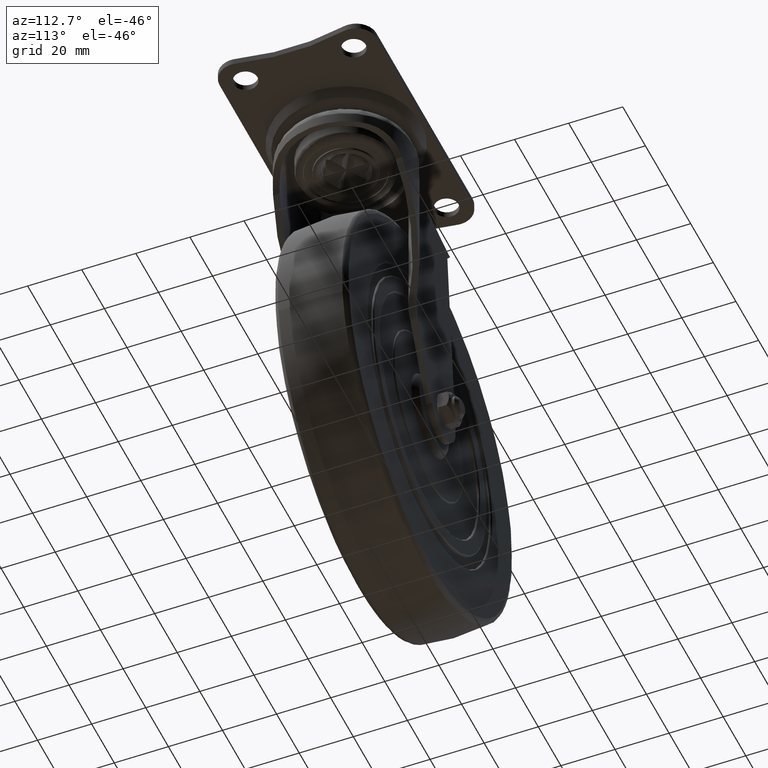
[diagram: clean part render]
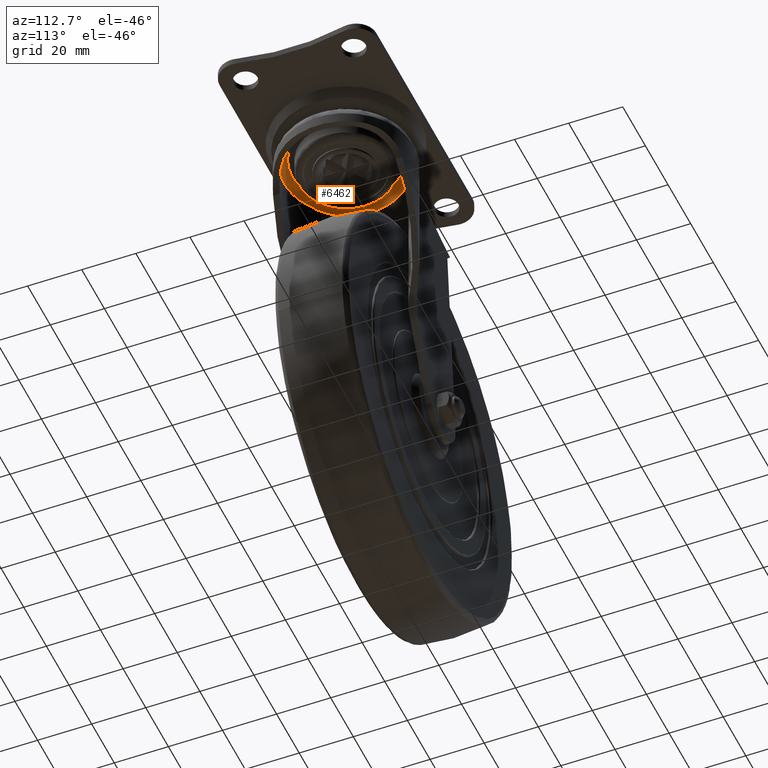
[diagram: same view with one face highlighted and labeled with its STEP entity id]
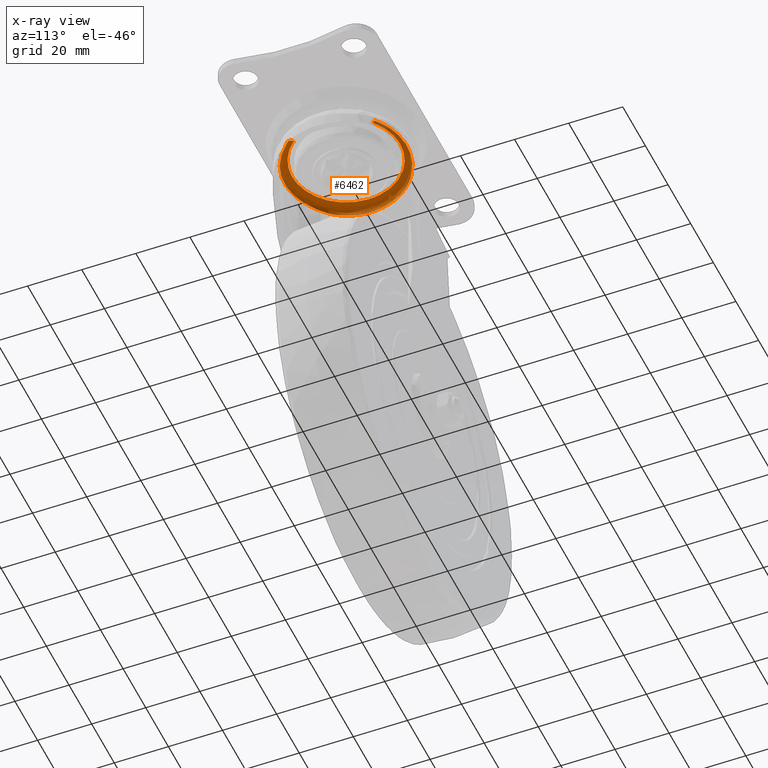
[diagram: x-ray of the same camera — body ghosted, the highlighted face saturated]
A machine part, auxiliary view. The second image highlights one B-rep face of the part: STEP entity #6462.
The next image is the same camera in x-ray: the body ghosted, the highlighted face saturated — about 10% of this face is hidden behind the body in this view.
In plain terms, the highlighted face is a freeform B-spline surface patch.
Its self-contained STEP definition (entity closure, byte-faithful):
#6246=CARTESIAN_POINT('',(56.149959861652299,16.673257907185693,86.150695876734787));
#6247=CARTESIAN_POINT('',(39.476701954466598,30.823217768837996,86.150695876734773));
#6248=CARTESIAN_POINT('',(25.326742092814307,14.149959861652297,86.150695876734787));
#6249=CARTESIAN_POINT('',(11.176782231162001,-2.523298045533391,86.150695876734773));
#6250=CARTESIAN_POINT('',(27.850040138347701,-16.673257907185693,86.150695876734787));
#6251=CARTESIAN_POINT('',(44.523298045533402,-30.823217768837996,86.150695876734773));
#6252=CARTESIAN_POINT('',(58.673257907185686,-14.149959861652297,86.150695876734787));
#6253=CARTESIAN_POINT('',(57.056579620976287,17.741551048562449,87.493559951585368));
#6254=CARTESIAN_POINT('',(39.315028572413844,32.798130669538736,87.493559951585368));
#6255=CARTESIAN_POINT('',(24.258448951437547,15.056579620976301,87.493559951585368));
#6256=CARTESIAN_POINT('',(9.201869330461250,-2.684971427586156,87.493559951585368));
#6257=CARTESIAN_POINT('',(26.943420379023710,-17.741551048562464,87.493559951585368));
#6258=CARTESIAN_POINT('',(44.684971427586163,-32.798130669538736,87.493559951585368));
#6259=CARTESIAN_POINT('',(59.741551048562478,-15.056579620976301,87.493559951585368));
#6260=CARTESIAN_POINT('',(56.521898325304988,17.111522466994810,89.249599087225789));
#6261=CARTESIAN_POINT('',(39.410375858310175,31.633420792299784,89.249599087225803));
#6262=CARTESIAN_POINT('',(24.888477533005190,14.521898325304990,89.249599087225789));
#6263=CARTESIAN_POINT('',(10.366579207700211,-2.589624141689817,89.249599087225803));
#6264=CARTESIAN_POINT('',(27.478101674695019,-17.111522466994810,89.249599087225789));
#6265=CARTESIAN_POINT('',(44.589624141689825,-31.633420792299784,89.249599087225803));
#6266=CARTESIAN_POINT('',(59.111522466994813,-14.521898325304990,89.249599087225789));
#6267=CARTESIAN_POINT('',(55.990693642971848,16.485590467424405,90.994220076896354));
#6268=CARTESIAN_POINT('',(39.505103175547447,30.476284110396250,90.994220076896354));
#6269=CARTESIAN_POINT('',(25.514409532575606,13.990693642971850,90.994220076896354));
#6270=CARTESIAN_POINT('',(11.523715889603757,-2.494896824452547,90.994220076896354));
#6271=CARTESIAN_POINT('',(28.009306357028152,-16.485590467424405,90.994220076896354));
#6272=CARTESIAN_POINT('',(44.494896824452546,-30.476284110396250,90.994220076896354));
#6273=CARTESIAN_POINT('',(58.485590467424409,-13.990693642971850,90.994220076896354));
#6274=CARTESIAN_POINT('',(54.750533755654587,15.024278502616275,90.783881122786894));
#6275=CARTESIAN_POINT('',(39.726255253038310,27.774812258270867,90.783881122786909));
#6276=CARTESIAN_POINT('',(26.975721497383720,12.750533755654583,90.783881122786894));
#6277=CARTESIAN_POINT('',(14.225187741729144,-2.273744746961695,90.783881122786909));
#6278=CARTESIAN_POINT('',(29.249466244345413,-15.024278502616275,90.783881122786894));
#6279=CARTESIAN_POINT('',(44.273744746961704,-27.774812258270867,90.783881122786909));
#6280=CARTESIAN_POINT('',(57.024278502616276,-12.750533755654583,90.783881122786894));
#6288=(BOUNDED_SURFACE()B_SPLINE_SURFACE(2,2,((#6246,#6253,#6260,#6267,#6274),(#6247,#6254,#6261,#6268,#6275),(#6248,#6255,#6262,#6269,#6276),(#6249,#6256,#6263,#6270,#6277),(#6250,#6257,#6264,#6271,#6278),(#6251,#6258,#6265,#6272,#6279),(#6252,#6259,#6266,#6273,#6280)),.UNSPECIFIED.,.F.,.F.,.U.)B_SPLINE_SURFACE_WITH_KNOTS((3,2,2,3),(3,2,3),(0.0,37.539841688649872,75.079683377299730,112.619525065949600),(0.0,3.478509579030628,6.938930579567319),.UNSPECIFIED.)GEOMETRIC_REPRESENTATION_ITEM()RATIONAL_B_SPLINE_SURFACE(((0.967502048088881,0.798695067335748,1.0,0.799741872006825,0.965756431777888),(0.684127259015521,0.564762698213354,0.707106781186548,0.565502900894850,0.682892921884668),(0.967502048088881,0.798695067335748,1.0,0.799741872006825,0.965756431777888),(0.684127259015521,0.564762698213354,0.707106781186548,0.565502900894850,0.682892921884668),(0.967502048088881,0.798695067335748,1.0,0.799741872006825,0.965756431777888),(0.684127259015521,0.564762698213354,0.707106781186548,0.565502900894850,0.682892921884668),(0.967502048088881,0.798695067335748,1.0,0.799741872006825,0.965756431777888)))REPRESENTATION_ITEM('')SURFACE());
#6289=CARTESIAN_POINT('',(29.765933542220349,19.121130141982501,88.099995000000007));
#6290=VERTEX_POINT('',#6289);
#6291=CARTESIAN_POINT('',(56.688170327574902,17.307445000003568,88.099994999968757));
#6292=VERTEX_POINT('',#6291);
#6293=CARTESIAN_POINT('',(29.765933542220370,19.121130141982491,88.099995000000092));
#6294=CARTESIAN_POINT('',(43.897246427173485,28.162615644484777,88.099995000000092));
#6295=CARTESIAN_POINT('',(56.688170327574895,17.307445000003565,88.099994999968757));
#6303=(BOUNDED_CURVE()B_SPLINE_CURVE(2,(#6293,#6294,#6295),.UNSPECIFIED.,.F.,.U.)B_SPLINE_CURVE_WITH_KNOTS((3,3),(0.0,0.295189320449306),.UNSPECIFIED.)CURVE()GEOMETRIC_REPRESENTATION_ITEM()RATIONAL_B_SPLINE_CURVE((1.0,0.784088768984405,0.950585675334010))REPRESENTATION_ITEM(''));
#6304=EDGE_CURVE('',#6290,#6292,#6303,.T.);
#6305=ORIENTED_EDGE('',*,*,#6304,.T.);
#6306=CARTESIAN_POINT('',(54.941119330499582,15.248850316063500,90.799995000000095));
#6307=VERTEX_POINT('',#6306);
#6308=CARTESIAN_POINT('',(56.688170327574895,17.307445000003568,88.099994999968757));
#6309=CARTESIAN_POINT('',(56.688170327635447,17.307444999970542,88.703516503792642));
#6310=CARTESIAN_POINT('',(56.521898325304988,17.111522466994810,89.249599087225789));
#6311=CARTESIAN_POINT('',(56.049831623878539,16.555274255746607,90.799994825862470));
#6312=CARTESIAN_POINT('',(54.941119330499582,15.248850316063491,90.799995000000095));
#6320=(BOUNDED_CURVE()B_SPLINE_CURVE(2,(#6308,#6309,#6310,#6311,#6312),.UNSPECIFIED.,.F.,.U.)B_SPLINE_CURVE_WITH_KNOTS((3,2,3),(-2.663820280309709,-2.0,-0.337553301753706),.UNSPECIFIED.)CURVE()GEOMETRIC_REPRESENTATION_ITEM()RATIONAL_B_SPLINE_CURVE((0.902883916252168,0.927318097770304,1.0,0.817978160703913,0.938557927154323))REPRESENTATION_ITEM(''));
#6321=EDGE_CURVE('',#6292,#6307,#6320,.T.);
#6322=ORIENTED_EDGE('',*,*,#6321,.T.);
#6323=CARTESIAN_POINT('',(22.0,0.0,90.799995000000095));
#6324=VERTEX_POINT('',#6323);
#6325=CARTESIAN_POINT('',(54.941119330499575,15.248850316063491,90.799995000000095));
#6326=CARTESIAN_POINT('',(49.342718515722751,19.999999999999993,90.799995000000095));
#6327=CARTESIAN_POINT('',(42.0,20.0,90.799995000000095));
#6328=CARTESIAN_POINT('',(22.000000000000007,19.999999999999996,90.799995000000095));
#6329=CARTESIAN_POINT('',(22.0,0.0,90.799995000000095));
#6337=(BOUNDED_CURVE()B_SPLINE_CURVE(2,(#6325,#6326,#6327,#6328,#6329),.UNSPECIFIED.,.F.,.U.)B_SPLINE_CURVE_WITH_KNOTS((3,2,3),(0.137331629628913,0.250000000000000,0.500000000000000),.UNSPECIFIED.)CURVE()GEOMETRIC_REPRESENTATION_ITEM()RATIONAL_B_SPLINE_CURVE((0.854978670754825,0.868000793374184,1.0,0.707106781186548,1.0))REPRESENTATION_ITEM(''));
#6338=EDGE_CURVE('',#6307,#6324,#6337,.T.);
#6339=ORIENTED_EDGE('',*,*,#6338,.T.);
#6340=CARTESIAN_POINT('',(57.248850236444959,-12.941119245575660,90.799995000000081));
#6341=VERTEX_POINT('',#6340);
#6342=CARTESIAN_POINT('',(22.0,0.0,90.799995000000095));
#6343=CARTESIAN_POINT('',(22.000000000000007,-19.999999999999996,90.799995000000095));
#6344=CARTESIAN_POINT('',(42.0,-20.0,90.799995000000095));
#6345=CARTESIAN_POINT('',(51.258246577760865,-20.0,90.799995000000095));
#6346=CARTESIAN_POINT('',(57.248850236444966,-12.941119245575655,90.799995000000095));
#6354=(BOUNDED_CURVE()B_SPLINE_CURVE(2,(#6342,#6343,#6344,#6345,#6346),.UNSPECIFIED.,.F.,.U.)B_SPLINE_CURVE_WITH_KNOTS((3,2,3),(0.500000000000000,0.750000000000000,0.887331629828900),.UNSPECIFIED.)CURVE()GEOMETRIC_REPRESENTATION_ITEM()RATIONAL_B_SPLINE_CURVE((1.0,0.707106781186548,1.0,0.839105987578064,0.854978670801054))REPRESENTATION_ITEM(''));
#6355=EDGE_CURVE('',#6324,#6341,#6354,.T.);
#6356=ORIENTED_EDGE('',*,*,#6355,.T.);
#6357=CARTESIAN_POINT('',(59.307445000053612,-14.688170327515920,88.099994999968828));
#6358=VERTEX_POINT('',#6357);
#6359=CARTESIAN_POINT('',(59.307445000053612,-14.688170327515920,88.099994999968828));
#6360=CARTESIAN_POINT('',(59.307444999970535,-14.688170327635428,88.703516503792684));
#6361=CARTESIAN_POINT('',(59.111522466994813,-14.521898325304980,89.249599087225789));
#6362=CARTESIAN_POINT('',(58.555274203080174,-14.049831579182504,90.799994972656364));
#6363=CARTESIAN_POINT('',(57.248850236444959,-12.941119245575663,90.799995000000081));
#6371=(BOUNDED_CURVE()B_SPLINE_CURVE(2,(#6359,#6360,#6361,#6362,#6363),.UNSPECIFIED.,.F.,.U.)B_SPLINE_CURVE_WITH_KNOTS((3,2,3),(-2.663820280309648,-2.0,-0.337553173001460),.UNSPECIFIED.)CURVE()GEOMETRIC_REPRESENTATION_ITEM()RATIONAL_B_SPLINE_CURVE((0.902883916252173,0.927318097770311,1.0,0.817978146606787,0.938557945831514))REPRESENTATION_ITEM(''));
#6372=EDGE_CURVE('',#6358,#6341,#6371,.T.);
#6373=ORIENTED_EDGE('',*,*,#6372,.F.);
#6374=CARTESIAN_POINT('',(29.765933542221049,-19.121130141982999,88.099995000000092));
#6375=VERTEX_POINT('',#6374);
#6376=CARTESIAN_POINT('',(59.307445000053619,-14.688170327515920,88.099994999968828));
#6377=CARTESIAN_POINT('',(59.236865373067012,-14.771336098675475,88.099995000000078));
#6378=CARTESIAN_POINT('',(59.165489767048847,-14.853819746359569,88.099995000000092));
#6379=CARTESIAN_POINT('',(46.312028313191220,-29.707639492719697,88.099995000000092));
#6380=CARTESIAN_POINT('',(29.765933542221092,-19.121130141982949,88.099995000000092));
#6388=(BOUNDED_CURVE()B_SPLINE_CURVE(2,(#6376,#6377,#6378,#6379,#6380),.UNSPECIFIED.,.F.,.U.)B_SPLINE_CURVE_WITH_KNOTS((3,2,3),(0.664223229125726,0.666666666666667,1.0),.UNSPECIFIED.)CURVE()GEOMETRIC_REPRESENTATION_ITEM()RATIONAL_B_SPLINE_CURVE((0.996451779585075,0.998212788977016,1.0,0.756188976521963,1.0))REPRESENTATION_ITEM(''));
#6389=EDGE_CURVE('',#6358,#6375,#6388,.T.);
#6390=ORIENTED_EDGE('',*,*,#6389,.T.);
#6391=CARTESIAN_POINT('',(29.765933542221081,-19.121130141982949,88.099995000000050));
#6392=CARTESIAN_POINT('',(29.378927611434499,-18.873516311542961,88.031755439843849));
#6393=CARTESIAN_POINT('',(28.999940711086150,-18.611428950661740,87.964929850550732));
#6394=CARTESIAN_POINT('',(28.443489981818001,-18.196585672335392,87.866812612562427));
#6395=CARTESIAN_POINT('',(28.259797080093179,-18.054506552953072,87.834422610703697));
#6396=CARTESIAN_POINT('',(27.897549567448198,-17.763952723590869,87.770548625929536));
#6397=CARTESIAN_POINT('',(27.719150159998410,-17.615617435811810,87.739092009562540));
#6398=CARTESIAN_POINT('',(27.192012378514761,-17.161562865185999,87.646143433097407));
#6399=CARTESIAN_POINT('',(26.851324860889282,-16.846805634629380,87.586071055637419));
#6400=CARTESIAN_POINT('',(26.356134434987741,-16.356886739194760,87.498755657683645));
#6401=CARTESIAN_POINT('',(26.193713560418409,-16.190613838653999,87.470116486655215));
#6402=CARTESIAN_POINT('',(26.013953971860150,-16.000229535916880,87.438420033755548));
#6403=CARTESIAN_POINT('',(25.994032253736211,-15.979041094901561,87.434907298745074));
#6404=CARTESIAN_POINT('',(25.953903658371921,-15.936177249760270,87.427831547498116));
#6405=CARTESIAN_POINT('',(25.893862657559399,-15.871768393206990,87.417244703316015));
#6406=CARTESIAN_POINT('',(25.754827367288211,-15.720691574195060,87.392729040119292));
#6407=CARTESIAN_POINT('',(25.637462440396771,-15.589850908199690,87.372034445148714));
#6408=CARTESIAN_POINT('',(24.940435261666892,-14.799474279145880,87.249129796124890));
#6409=CARTESIAN_POINT('',(24.371560933104220,-14.059165422218660,87.148821943254561));
#6410=CARTESIAN_POINT('',(23.590767803778160,-12.894709793092099,87.011147102949394));
#6411=CARTESIAN_POINT('',(23.342632261916918,-12.497527594270871,86.967394129445012));
#6412=CARTESIAN_POINT('',(22.988528796894780,-11.888278354843790,86.904956159427897));
#6413=CARTESIAN_POINT('',(22.873375615166999,-11.682690198066870,86.884651554649025));
#6414=CARTESIAN_POINT('',(22.649769989016889,-11.268227613631140,86.845223865399092));
#6415=CARTESIAN_POINT('',(22.541510045114251,-11.059732342640711,86.826134723949920));
#6416=CARTESIAN_POINT('',(22.017514482940090,-10.011082435550581,86.733740205308038));
#6417=CARTESIAN_POINT('',(21.653472003442310,-9.152485393898230,86.669549719574107));
#6418=CARTESIAN_POINT('',(21.028961606373372,-7.398339325836950,86.559431730626613));
#6419=CARTESIAN_POINT('',(20.768515497653830,-6.502782518749664,86.513508072900507));
#6420=CARTESIAN_POINT('',(20.506683235163909,-5.360601400197228,86.467339998962444));
#6421=CARTESIAN_POINT('',(20.457514932201502,-5.131024182301582,86.458670304002041));
#6422=CARTESIAN_POINT('',(20.365597165771341,-4.669579716460938,86.442462728218942));
#6423=CARTESIAN_POINT('',(20.322809565301529,-4.437484696803038,86.434918122816470));
#6424=CARTESIAN_POINT('',(20.204396140227178,-3.739271250441256,86.414038649400510));
#6425=CARTESIAN_POINT('',(20.139076648381160,-3.273578662050560,86.402521065201910));
#6426=CARTESIAN_POINT('',(19.982671607891021,-1.875870966244631,86.374942647611320));
#6427=CARTESIAN_POINT('',(19.930958475678700,-0.943228811110138,86.365824230771338));
#6428=CARTESIAN_POINT('',(19.930238492633169,0.923691206217992,86.365697278385241));
#6429=CARTESIAN_POINT('',(19.981226509371108,1.857968986672240,86.374687837853813));
#6430=CARTESIAN_POINT('',(20.111335904692719,3.026873294935415,86.397629625569834));
#6431=CARTESIAN_POINT('',(20.140691417317239,3.260707248257529,86.402805792419727));
#6432=CARTESIAN_POINT('',(20.206186156494219,3.728483192780408,86.414354277438804));
#6433=CARTESIAN_POINT('',(20.242197254351790,3.961488817507984,86.420704003071037));
#6434=CARTESIAN_POINT('',(20.359818067981070,4.656999431814225,86.441443717759569));
#6435=CARTESIAN_POINT('',(20.451058829419321,5.116385939926736,86.457531919343964));
#6436=CARTESIAN_POINT('',(20.763000685258671,6.481771024738786,86.512535663068348));
#6437=CARTESIAN_POINT('',(21.021771478772131,7.375045254993178,86.558163917639945));
#6438=CARTESIAN_POINT('',(21.643271545079021,9.126846823955377,86.667751104264283));
#6439=CARTESIAN_POINT('',(22.005973192146111,9.985383396235338,86.731705165158104));
#6440=CARTESIAN_POINT('',(22.528989145538880,11.035278135124059,86.823926952409963));
#6441=CARTESIAN_POINT('',(22.637103445081369,11.244116301002220,86.842990412839043));
#6442=CARTESIAN_POINT('',(22.860442849963810,11.659283507401179,86.882371160115341));
#6443=CARTESIAN_POINT('',(22.975136649587981,11.864626351854110,86.902594763467107));
#6444=CARTESIAN_POINT('',(23.328274496393060,12.473944348583260,86.964862469007159));
#6445=CARTESIAN_POINT('',(23.575765969318802,12.871215649380829,87.008501875825957));
#6446=CARTESIAN_POINT('',(24.354633435867481,14.036063473908090,87.145837169962789));
#6447=CARTESIAN_POINT('',(24.922232757317840,14.776799676792120,87.245920204768041));
#6448=CARTESIAN_POINT('',(25.695147679554012,15.655730884196201,87.382205905156027));
#6449=CARTESIAN_POINT('',(25.852914825046149,15.829157764757030,87.410024498513550));
#6450=CARTESIAN_POINT('',(26.174949468659172,16.171194973655780,87.466807872325276));
#6451=CARTESIAN_POINT('',(26.338599362230742,16.339144505969148,87.495663752477398));
#6452=CARTESIAN_POINT('',(26.836858470491698,16.833224981469439,87.583520241711156));
#6453=CARTESIAN_POINT('',(27.179011580599681,17.149858268422658,87.643851042565814));
#6454=CARTESIAN_POINT('',(28.235508588214490,18.061373642784901,87.830139895967818));
#6455=CARTESIAN_POINT('',(28.979716391443759,18.618093302558009,87.961363758749414));
#6456=CARTESIAN_POINT('',(29.765933542220381,19.121130141982508,88.099994999999936));
#6457=B_SPLINE_CURVE_WITH_KNOTS('',3,(#6391,#6392,#6393,#6394,#6395,#6396,#6397,#6398,#6399,#6400,#6401,#6402,#6403,#6404,#6405,#6406,#6407,#6408,#6409,#6410,#6411,#6412,#6413,#6414,#6415,#6416,#6417,#6418,#6419,#6420,#6421,#6422,#6423,#6424,#6425,#6426,#6427,#6428,#6429,#6430,#6431,#6432,#6433,#6434,#6435,#6436,#6437,#6438,#6439,#6440,#6441,#6442,#6443,#6444,#6445,#6446,#6447,#6448,#6449,#6450,#6451,#6452,#6453,#6454,#6455,#6456),.UNSPECIFIED.,.F.,.U.,(4,2,2,2,2,2,2,1,1,2,2,2,2,2,2,2,2,2,2,2,2,2,2,2,2,2,2,2,2,2,2,2,2,4),(0.0,0.031249999999998,0.046874999999998,0.062499999999997,0.093749999999995,0.109374999999994,0.111328124999994,0.113281249999994,0.117187499999994,0.124999999999994,0.187499999999995,0.218749999999995,0.234374999999995,0.249999999999996,0.312499999999996,0.374999999999997,0.390624999999997,0.406249999999997,0.437499999999997,0.499999999999998,0.562499999999998,0.578124999999998,0.593749999999998,0.624999999999998,0.687499999999998,0.749999999999999,0.765624999999999,0.781249999999999,0.812499999999999,0.875000000000000,0.890625000000000,0.906250000000000,0.937500000000000,1.0),.UNSPECIFIED.);
#6458=EDGE_CURVE('',#6375,#6290,#6457,.T.);
#6459=ORIENTED_EDGE('',*,*,#6458,.T.);
#6460=EDGE_LOOP('',(#6305,#6322,#6339,#6356,#6373,#6390,#6459));
#6461=FACE_OUTER_BOUND('',#6460,.T.);
#6462=ADVANCED_FACE('',(#6461),#6288,.F.);